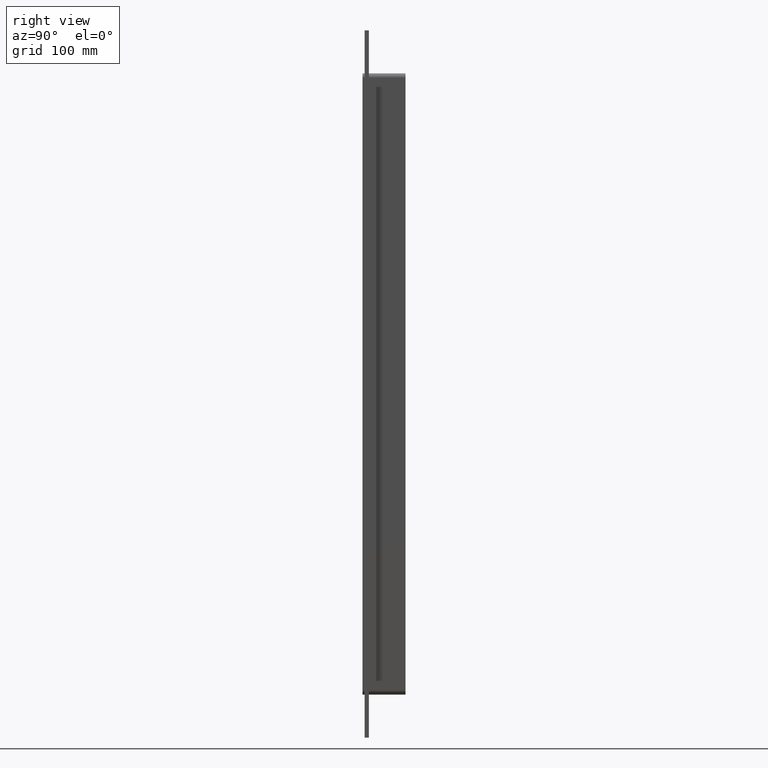
[diagram: clean part render]
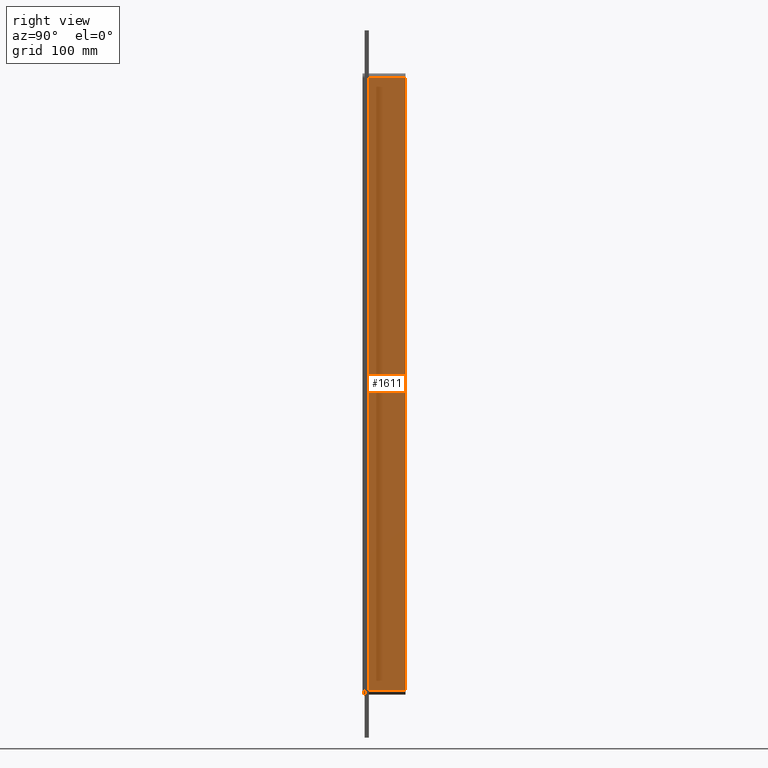
[diagram: same view with one face highlighted and labeled with its STEP entity id]
A machine part, right view. The second image highlights one B-rep face of the part: STEP entity #1611.
In plain terms, the highlighted planar face has unit normal (1, 0, 0).
Its self-contained STEP definition (entity closure, byte-faithful):
#1167=CARTESIAN_POINT('',(66.25,6.000000000000001,-427.0));
#1168=VERTEX_POINT('',#1167);
#1176=CARTESIAN_POINT('',(66.25,6.000000000000001,426.99999999999994));
#1177=VERTEX_POINT('',#1176);
#1178=CARTESIAN_POINT('',(66.25,6.000000000000001,427.0));
#1179=DIRECTION('',(0.0,0.0,-1.0));
#1180=VECTOR('',#1179,854.0);
#1181=LINE('',#1178,#1180);
#1182=EDGE_CURVE('',#1177,#1168,#1181,.T.);
#1538=CARTESIAN_POINT('',(66.25,57.0,426.99999999999994));
#1539=VERTEX_POINT('',#1538);
#1540=CARTESIAN_POINT('',(66.25,6.000000000000001,426.99999999999994));
#1541=DIRECTION('',(0.0,1.0,0.0));
#1542=VECTOR('',#1541,51.0);
#1543=LINE('',#1540,#1542);
#1544=EDGE_CURVE('',#1177,#1539,#1543,.T.);
#1588=CARTESIAN_POINT('',(66.25,0.0,433.0));
#1589=DIRECTION('',(1.0,0.0,0.0));
#1590=DIRECTION('',(0.0,0.0,-1.0));
#1591=AXIS2_PLACEMENT_3D('',#1588,#1589,#1590);
#1592=PLANE('',#1591);
#1593=ORIENTED_EDGE('',*,*,#1182,.T.);
#1594=CARTESIAN_POINT('',(66.25,57.0,-427.0));
#1595=VERTEX_POINT('',#1594);
#1596=CARTESIAN_POINT('',(66.25,57.0,-427.0));
#1597=DIRECTION('',(0.0,-1.0,0.0));
#1598=VECTOR('',#1597,51.0);
#1599=LINE('',#1596,#1598);
#1600=EDGE_CURVE('',#1595,#1168,#1599,.T.);
#1601=ORIENTED_EDGE('',*,*,#1600,.F.);
#1602=CARTESIAN_POINT('',(66.25,57.0,427.0));
#1603=DIRECTION('',(0.0,0.0,-1.0));
#1604=VECTOR('',#1603,854.0);
#1605=LINE('',#1602,#1604);
#1606=EDGE_CURVE('',#1539,#1595,#1605,.T.);
#1607=ORIENTED_EDGE('',*,*,#1606,.F.);
#1608=ORIENTED_EDGE('',*,*,#1544,.F.);
#1609=EDGE_LOOP('',(#1593,#1601,#1607,#1608));
#1610=FACE_OUTER_BOUND('',#1609,.T.);
#1611=ADVANCED_FACE('',(#1610),#1592,.T.);